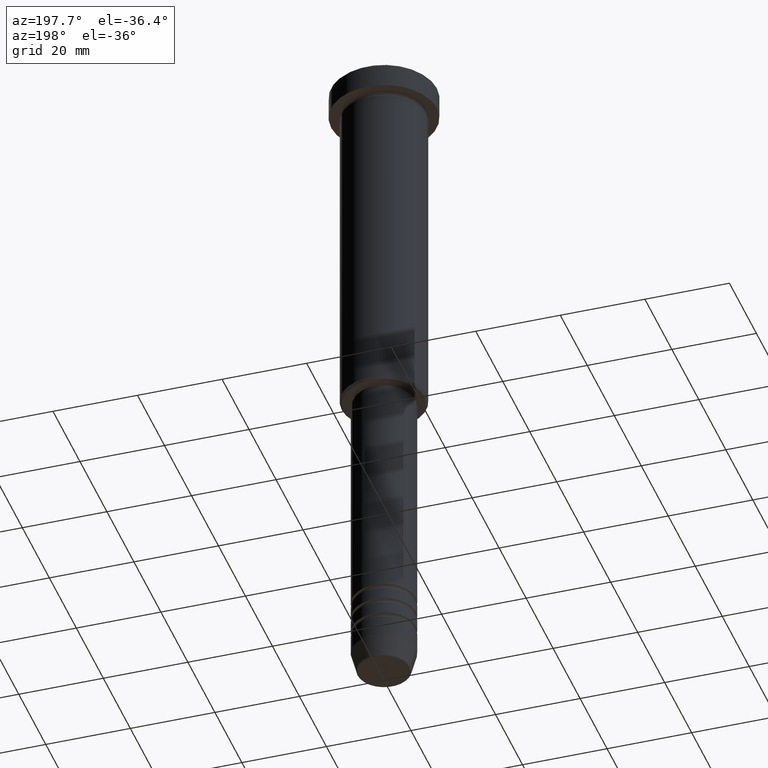
[diagram: clean part render]
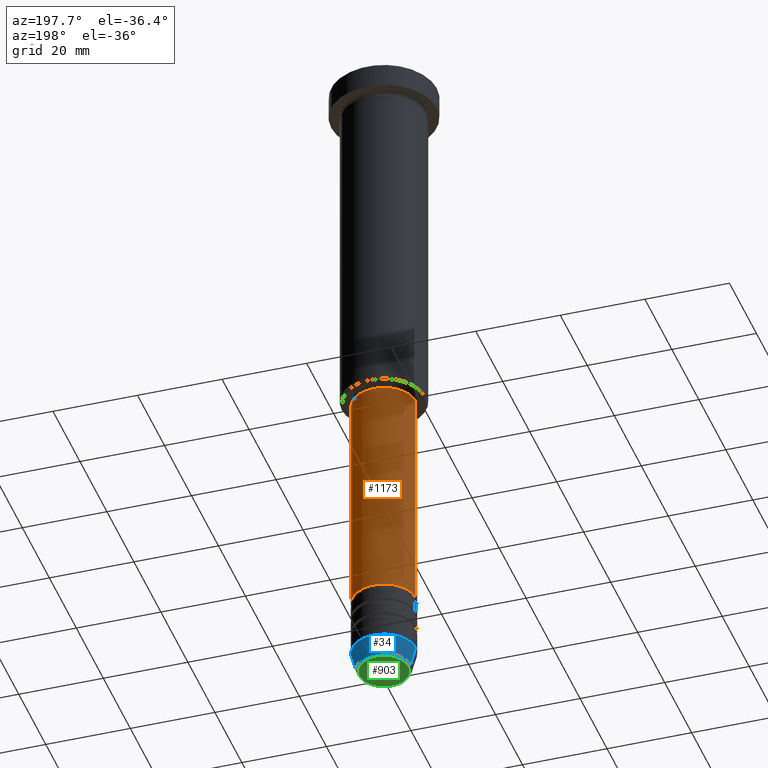
[diagram: same view with three faces highlighted in distinct colors, each labeled with its STEP entity id]
A machine part, auxiliary view with three faces highlighted in distinct colors.
Their STEP definitions:

[orange] entity #1173 — the highlighted cylindrical surface (edge-blend (fillet) strip) has radius 7.5 mm, axis along (-0, -0, 1).
#5 = ORIENTED_EDGE ( 'NONE', *, *, #15, .T. ) ;
#10 = CIRCLE ( 'NONE', #675, 7.500000000000000000 ) ;
#15 = EDGE_CURVE ( 'NONE', #319, #1067, #1166, .T. ) ;
#19 = VERTEX_POINT ( 'NONE', #629 ) ;
#62 = DIRECTION ( 'NONE',  ( 1.000000000000000000, 0.000000000000000000, 0.000000000000000000 ) ) ;
#72 = LINE ( 'NONE', #543, #998 ) ;
#78 = FACE_OUTER_BOUND ( 'NONE', #867, .T. ) ;
#114 = DIRECTION ( 'NONE',  ( -0.000000000000000000, -0.000000000000000000, 1.000000000000000000 ) ) ;
#118 = VERTEX_POINT ( 'NONE', #1167 ) ;
#165 = DIRECTION ( 'NONE',  ( 1.000000000000000000, 0.000000000000000000, 0.000000000000000000 ) ) ;
#269 = ORIENTED_EDGE ( 'NONE', *, *, #886, .F. ) ;
#306 = DIRECTION ( 'NONE',  ( 1.000000000000000000, 0.000000000000000000, 0.000000000000000000 ) ) ;
#319 = VERTEX_POINT ( 'NONE', #394 ) ;
#337 = CARTESIAN_POINT ( 'NONE',  ( 0.000000000000000000, 0.000000000000000000, 0.000000000000000000 ) ) ;
#345 = DIRECTION ( 'NONE',  ( -0.000000000000000000, -0.000000000000000000, 1.000000000000000000 ) ) ;
#380 = VECTOR ( 'NONE', #966, 1000.000000000000000 ) ;
#394 = CARTESIAN_POINT ( 'NONE',  ( 7.500000000000000888, 0.000000000000000000, -141.9999999999998579 ) ) ;
#488 = AXIS2_PLACEMENT_3D ( 'NONE', #337, #624, #62 ) ;
#543 = CARTESIAN_POINT ( 'NONE',  ( 7.500000000000000000, 0.000000000000000000, 0.000000000000000000 ) ) ;
#549 = ORIENTED_EDGE ( 'NONE', *, *, #1121, .T. ) ;
#555 = CARTESIAN_POINT ( 'NONE',  ( 0.000000000000000000, 0.000000000000000000, -86.99999999999997158 ) ) ;
#579 = AXIS2_PLACEMENT_3D ( 'NONE', #622, #345, #165 ) ;
#596 = EDGE_CURVE ( 'NONE', #118, #19, #10, .T. ) ;
#607 = ORIENTED_EDGE ( 'NONE', *, *, #596, .F. ) ;
#613 = DIRECTION ( 'NONE',  ( -0.000000000000000000, -0.000000000000000000, 1.000000000000000000 ) ) ;
#622 = CARTESIAN_POINT ( 'NONE',  ( 0.000000000000000000, 0.000000000000000000, -141.9999999999998579 ) ) ;
#624 = DIRECTION ( 'NONE',  ( -0.000000000000000000, -0.000000000000000000, 1.000000000000000000 ) ) ;
#629 = CARTESIAN_POINT ( 'NONE',  ( -7.500000000000000000, 9.184850993605147944E-16, -86.99999999999997158 ) ) ;
#630 = CYLINDRICAL_SURFACE ( 'NONE', #488, 7.500000000000000000 ) ;
#675 = AXIS2_PLACEMENT_3D ( 'NONE', #555, #114, #306 ) ;
#802 = CARTESIAN_POINT ( 'NONE',  ( -7.500000000000001776, 9.184850993605149917E-16, -141.9999999999998579 ) ) ;
#867 = EDGE_LOOP ( 'NONE', ( #5, #549, #607, #269 ) ) ;
#886 = EDGE_CURVE ( 'NONE', #319, #118, #72, .T. ) ;
#966 = DIRECTION ( 'NONE',  ( -0.000000000000000000, -0.000000000000000000, 1.000000000000000000 ) ) ;
#998 = VECTOR ( 'NONE', #613, 1000.000000000000000 ) ;
#1067 = VERTEX_POINT ( 'NONE', #802 ) ;
#1080 = CARTESIAN_POINT ( 'NONE',  ( -7.500000000000000000, 9.184850993605147944E-16, 0.000000000000000000 ) ) ;
#1121 = EDGE_CURVE ( 'NONE', #1067, #19, #1164, .T. ) ;
#1164 = LINE ( 'NONE', #1080, #380 ) ;
#1166 = CIRCLE ( 'NONE', #579, 7.500000000000000888 ) ;
#1167 = CARTESIAN_POINT ( 'NONE',  ( 7.500000000000000000, 0.000000000000000000, -86.99999999999997158 ) ) ;
#1173 = ADVANCED_FACE ( 'NONE', ( #78 ), #630, .T. ) ;

[blue] entity #34 — the highlighted conical surface has half-angle 15 deg.
#34 = ADVANCED_FACE ( 'NONE', ( #698 ), #538, .T. ) ;
#36 = DIRECTION ( 'NONE',  ( -0.000000000000000000, -0.000000000000000000, 1.000000000000000000 ) ) ;
#46 = ORIENTED_EDGE ( 'NONE', *, *, #348, .F. ) ;
#127 = AXIS2_PLACEMENT_3D ( 'NONE', #1127, #36, #424 ) ;
#180 = AXIS2_PLACEMENT_3D ( 'NONE', #351, #365, #1064 ) ;
#220 = LINE ( 'NONE', #940, #1150 ) ;
#244 = VERTEX_POINT ( 'NONE', #810 ) ;
#327 = DIRECTION ( 'NONE',  ( -0.000000000000000000, -0.000000000000000000, 1.000000000000000000 ) ) ;
#334 = VERTEX_POINT ( 'NONE', #1118 ) ;
#348 = EDGE_CURVE ( 'NONE', #551, #334, #755, .T. ) ;
#351 = CARTESIAN_POINT ( 'NONE',  ( 0.000000000000000000, 0.000000000000000000, -155.9999999999999716 ) ) ;
#365 = DIRECTION ( 'NONE',  ( -0.000000000000000000, -0.000000000000000000, 1.000000000000000000 ) ) ;
#413 = VECTOR ( 'NONE', #722, 1000.000000000000000 ) ;
#416 = ORIENTED_EDGE ( 'NONE', *, *, #511, .T. ) ;
#424 = DIRECTION ( 'NONE',  ( 1.000000000000000000, 0.000000000000000000, 0.000000000000000000 ) ) ;
#429 = CARTESIAN_POINT ( 'NONE',  ( 0.000000000000000000, 0.000000000000000000, -160.6294095225512137 ) ) ;
#465 = CIRCLE ( 'NONE', #784, 6.259553456999438659 ) ;
#492 = DIRECTION ( 'NONE',  ( -0.2588190451025213501, 3.169619151431772337E-17, 0.9659258262890680902 ) ) ;
#511 = EDGE_CURVE ( 'NONE', #244, #778, #220, .T. ) ;
#538 = CONICAL_SURFACE ( 'NONE', #180, 7.500000000000000000, 0.2617993877991500740 ) ;
#547 = EDGE_LOOP ( 'NONE', ( #942, #416, #1060, #46 ) ) ;
#551 = VERTEX_POINT ( 'NONE', #774 ) ;
#690 = DIRECTION ( 'NONE',  ( 1.000000000000000000, 0.000000000000000000, 0.000000000000000000 ) ) ;
#698 = FACE_OUTER_BOUND ( 'NONE', #547, .T. ) ;
#722 = DIRECTION ( 'NONE',  ( 0.2588190451025213501, 0.000000000000000000, 0.9659258262890680902 ) ) ;
#728 = EDGE_CURVE ( 'NONE', #551, #244, #465, .T. ) ;
#755 = LINE ( 'NONE', #795, #413 ) ;
#774 = CARTESIAN_POINT ( 'NONE',  ( 6.259553456999438659, 0.000000000000000000, -160.6294095225512137 ) ) ;
#778 = VERTEX_POINT ( 'NONE', #1136 ) ;
#784 = AXIS2_PLACEMENT_3D ( 'NONE', #429, #327, #690 ) ;
#795 = CARTESIAN_POINT ( 'NONE',  ( 7.500000000000000000, 0.000000000000000000, -155.9999999999999716 ) ) ;
#810 = CARTESIAN_POINT ( 'NONE',  ( -6.259553456999438659, 8.425296549405629486E-16, -160.6294095225512137 ) ) ;
#878 = CIRCLE ( 'NONE', #127, 7.500000000000000000 ) ;
#940 = CARTESIAN_POINT ( 'NONE',  ( -7.500000000000000000, 9.184850993605147944E-16, -155.9999999999999716 ) ) ;
#942 = ORIENTED_EDGE ( 'NONE', *, *, #728, .T. ) ;
#1015 = EDGE_CURVE ( 'NONE', #334, #778, #878, .T. ) ;
#1060 = ORIENTED_EDGE ( 'NONE', *, *, #1015, .F. ) ;
#1064 = DIRECTION ( 'NONE',  ( 1.000000000000000000, 0.000000000000000000, 0.000000000000000000 ) ) ;
#1118 = CARTESIAN_POINT ( 'NONE',  ( 7.500000000000000000, 0.000000000000000000, -155.9999999999999716 ) ) ;
#1127 = CARTESIAN_POINT ( 'NONE',  ( 0.000000000000000000, 0.000000000000000000, -155.9999999999999716 ) ) ;
#1136 = CARTESIAN_POINT ( 'NONE',  ( -7.500000000000000000, 9.184850993605147944E-16, -155.9999999999999716 ) ) ;
#1150 = VECTOR ( 'NONE', #492, 1000.000000000000000 ) ;

[green] entity #903 — the highlighted planar face has unit normal (0, -0, 1).
#65 = AXIS2_PLACEMENT_3D ( 'NONE', #256, #347, #703 ) ;
#143 = ORIENTED_EDGE ( 'NONE', *, *, #545, .T. ) ;
#172 = DIRECTION ( 'NONE',  ( 0.000000000000000000, 0.000000000000000000, -1.000000000000000000 ) ) ;
#256 = CARTESIAN_POINT ( 'NONE',  ( 0.000000000000000000, 0.000000000000000000, -160.9999999999999716 ) ) ;
#266 = DIRECTION ( 'NONE',  ( 1.000000000000000000, 0.000000000000000000, 0.000000000000000000 ) ) ;
#335 = AXIS2_PLACEMENT_3D ( 'NONE', #406, #512, #860 ) ;
#346 = CARTESIAN_POINT ( 'NONE',  ( 0.000000000000000000, 0.000000000000000000, -160.9999999999999716 ) ) ;
#347 = DIRECTION ( 'NONE',  ( 0.000000000000000000, -0.000000000000000000, 1.000000000000000000 ) ) ;
#368 = EDGE_LOOP ( 'NONE', ( #894, #143 ) ) ;
#395 = CIRCLE ( 'NONE', #335, 5.776590543854905668 ) ;
#406 = CARTESIAN_POINT ( 'NONE',  ( 0.000000000000000000, 0.000000000000000000, -160.9999999999999716 ) ) ;
#417 = AXIS2_PLACEMENT_3D ( 'NONE', #346, #172, #266 ) ;
#512 = DIRECTION ( 'NONE',  ( 0.000000000000000000, 0.000000000000000000, -1.000000000000000000 ) ) ;
#545 = EDGE_CURVE ( 'NONE', #591, #1043, #395, .T. ) ;
#591 = VERTEX_POINT ( 'NONE', #730 ) ;
#703 = DIRECTION ( 'NONE',  ( 1.000000000000000000, 0.000000000000000000, 0.000000000000000000 ) ) ;
#730 = CARTESIAN_POINT ( 'NONE',  ( -5.776590543854905668, 7.370012612361447573E-16, -160.9999999999999716 ) ) ;
#791 = FACE_OUTER_BOUND ( 'NONE', #368, .T. ) ;
#860 = DIRECTION ( 'NONE',  ( 1.000000000000000000, 0.000000000000000000, 0.000000000000000000 ) ) ;
#894 = ORIENTED_EDGE ( 'NONE', *, *, #1160, .T. ) ;
#903 = ADVANCED_FACE ( 'NONE', ( #791 ), #972, .F. ) ;
#922 = CIRCLE ( 'NONE', #417, 5.776590543854905668 ) ;
#972 = PLANE ( 'NONE',  #65 ) ;
#1043 = VERTEX_POINT ( 'NONE', #1054 ) ;
#1054 = CARTESIAN_POINT ( 'NONE',  ( 5.776590543854905668, 0.000000000000000000, -160.9999999999999716 ) ) ;
#1160 = EDGE_CURVE ( 'NONE', #1043, #591, #922, .T. ) ;